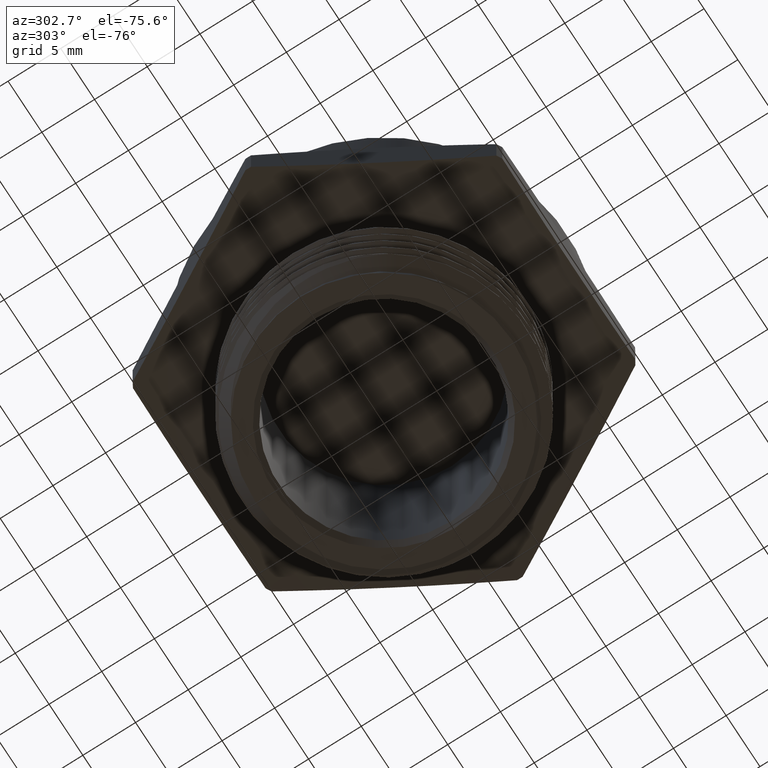
[diagram: clean part render]
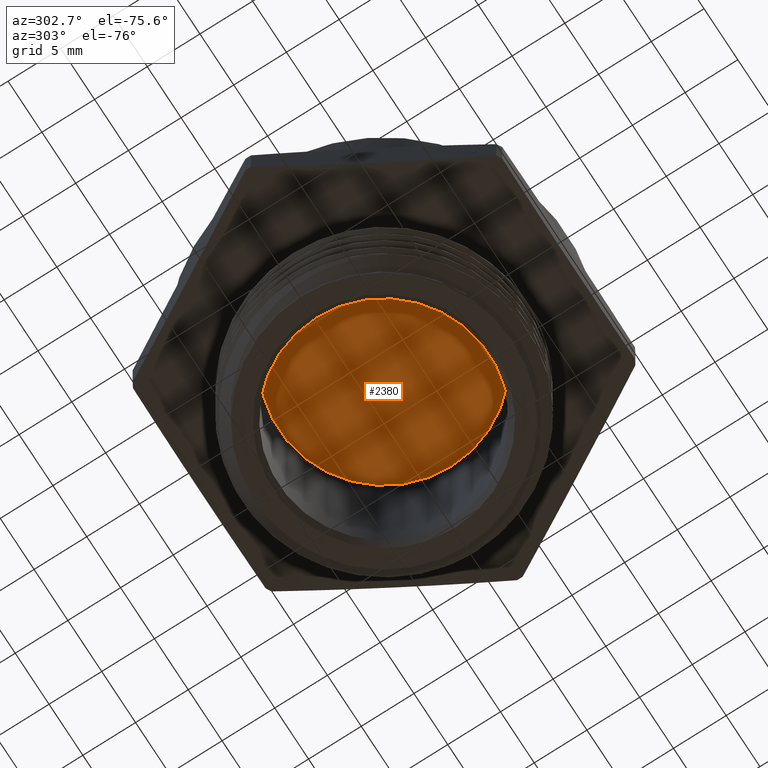
[diagram: same view with one face highlighted and labeled with its STEP entity id]
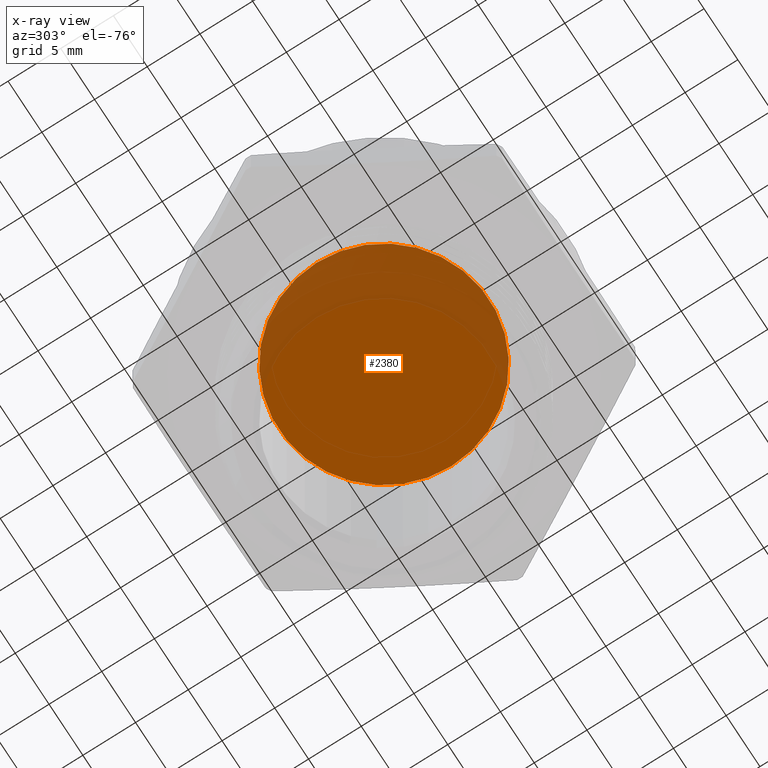
[diagram: x-ray of the same camera — body ghosted, the highlighted face saturated]
A machine part, auxiliary view. The second image highlights one B-rep face of the part: STEP entity #2380.
The next image is the same camera in x-ray: the body ghosted, the highlighted face saturated — about 29% of this face is hidden behind the body in this view.
In plain terms, the highlighted planar face has unit normal (0, 0, -1).
Its self-contained STEP definition (entity closure, byte-faithful):
#358 = ORIENTED_EDGE ( 'NONE', *, *, #2184, .T. ) ;
#359 = ORIENTED_EDGE ( 'NONE', *, *, #2187, .T. ) ;
#469 = CIRCLE ( 'NONE', #2281, 0.3924999999999999600 ) ;
#474 = CIRCLE ( 'NONE', #2283, 0.3924999999999999600 ) ;
#554 = FACE_OUTER_BOUND ( 'NONE', #1753, .T. ) ;
#1753 = EDGE_LOOP ( 'NONE', ( #358, #359 ) ) ;
#2151 = CARTESIAN_POINT ( 'NONE',  ( 0.0000000000000000000, 0.0000000000000000000, 0.1365196850393700600 ) ) ;
#2152 = DIRECTION ( 'NONE',  ( 0.0000000000000000000, 0.0000000000000000000, -1.000000000000000000 ) ) ;
#2153 = DIRECTION ( 'NONE',  ( -1.000000000000000000, 0.0000000000000000000, 0.0000000000000000000 ) ) ;
#2159 = CARTESIAN_POINT ( 'NONE',  ( 0.0000000000000000000, 0.0000000000000000000, 0.1365196850393700600 ) ) ;
#2160 = DIRECTION ( 'NONE',  ( 0.0000000000000000000, 0.0000000000000000000, -1.000000000000000000 ) ) ;
#2161 = DIRECTION ( 'NONE',  ( -1.000000000000000000, 0.0000000000000000000, 0.0000000000000000000 ) ) ;
#2184 = EDGE_CURVE ( 'NONE', #2749, #2753, #469, .T. ) ;
#2187 = EDGE_CURVE ( 'NONE', #2753, #2749, #474, .T. ) ;
#2281 = AXIS2_PLACEMENT_3D ( 'NONE', #2151, #2152, #2153 ) ;
#2283 = AXIS2_PLACEMENT_3D ( 'NONE', #2159, #2160, #2161 ) ;
#2318 = AXIS2_PLACEMENT_3D ( 'NONE', #2880, #2884, #2885 ) ;
#2380 = ADVANCED_FACE ( 'NONE', ( #554 ), #2882, .T. ) ;
#2749 = VERTEX_POINT ( 'NONE', #3029 ) ;
#2753 = VERTEX_POINT ( 'NONE', #3027 ) ;
#2880 = CARTESIAN_POINT ( 'NONE',  ( 0.0000000000000000000, 0.0000000000000000000, 0.1365196850393700600 ) ) ;
#2882 = PLANE ( 'NONE',  #2318 ) ;
#2884 = DIRECTION ( 'NONE',  ( 0.0000000000000000000, 0.0000000000000000000, -1.000000000000000000 ) ) ;
#2885 = DIRECTION ( 'NONE',  ( -1.000000000000000000, 0.0000000000000000000, -0.0000000000000000000 ) ) ;
#3027 = CARTESIAN_POINT ( 'NONE',  ( -0.3924999999999999600, 4.806738686653361200E-017, 0.1365196850393700600 ) ) ;
#3029 = CARTESIAN_POINT ( 'NONE',  ( 0.3924999999999999600, 0.0000000000000000000, 0.1365196850393700600 ) ) ;